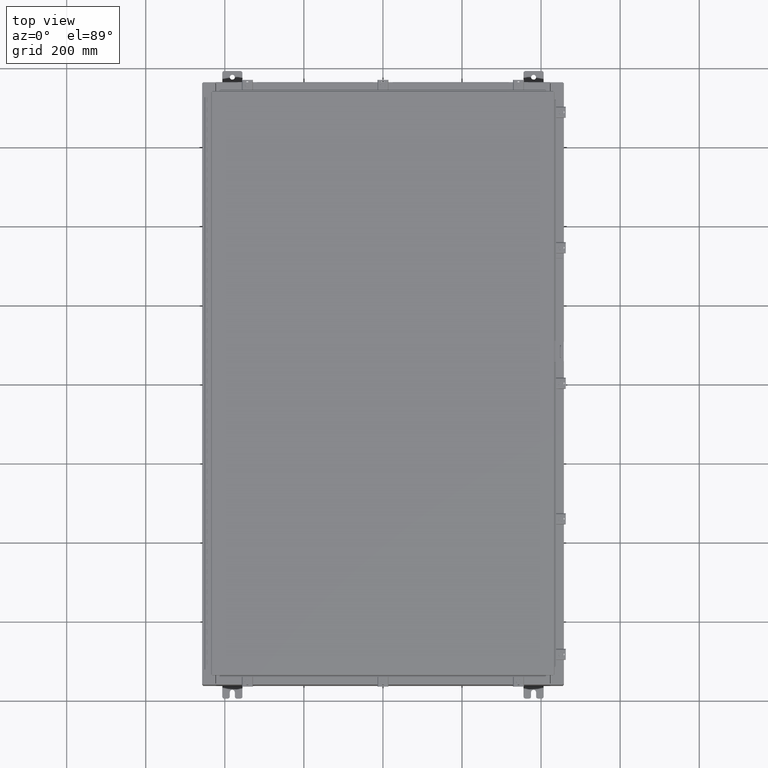
[diagram: clean part render]
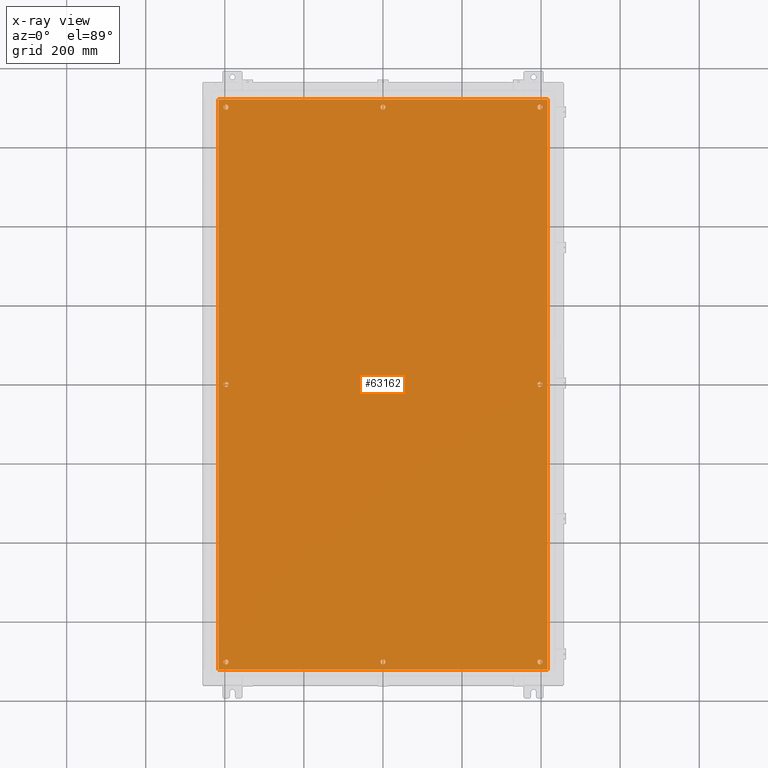
[diagram: x-ray — body ghosted, one internal face saturated and labeled with its STEP entity id]
A machine part, top view, then the same camera in x-ray: the body is ghosted and one INTERNAL B-rep face — a face not visible from any outside direction — is saturated and labeled: STEP entity #63162.
In plain terms, the highlighted planar face has unit normal (0, 0, -1).
Its self-contained STEP definition (entity closure, byte-faithful):
#35 = VERTEX_POINT ( 'NONE', #49221 ) ;
#111 = CIRCLE ( 'NONE', #32058, 0.2500000000000008900 ) ;
#147 = CARTESIAN_POINT ( 'NONE',  ( -15.87500000000001100, 27.62500000000000000, -0.1039999999999999800 ) ) ;
#505 = DIRECTION ( 'NONE',  ( -1.000000000000000000, -0.0000000000000000000, -0.0000000000000000000 ) ) ;
#822 = EDGE_CURVE ( 'NONE', #14076, #9034, #64489, .T. ) ;
#1274 = LINE ( 'NONE', #18261, #26371 ) ;
#1675 = ORIENTED_EDGE ( 'NONE', *, *, #10534, .T. ) ;
#1842 = EDGE_CURVE ( 'NONE', #48294, #40568, #46942, .T. ) ;
#1957 = EDGE_CURVE ( 'NONE', #36405, #15107, #59955, .T. ) ;
#2776 = CARTESIAN_POINT ( 'NONE',  ( -16.38299999999999900, -28.38300000000000600, -0.1040000000000009400 ) ) ;
#2871 = CARTESIAN_POINT ( 'NONE',  ( -15.37500000000000500, -8.298848852119578500E-016, -0.1039999999999999800 ) ) ;
#4050 = AXIS2_PLACEMENT_3D ( 'NONE', #61858, #62147, #61641 ) ;
#4308 = VERTEX_POINT ( 'NONE', #6090 ) ;
#4531 = DIRECTION ( 'NONE',  ( -1.000000000000000000, 0.0000000000000000000, 0.0000000000000000000 ) ) ;
#4767 = CARTESIAN_POINT ( 'NONE',  ( 15.87500000000000700, -27.62500000000000000, -0.1039999999999999800 ) ) ;
#5529 = CARTESIAN_POINT ( 'NONE',  ( -0.2500000000000011700, -27.62500000000000000, -0.1039999999999999800 ) ) ;
#5547 = DIRECTION ( 'NONE',  ( -0.0000000000000000000, -0.0000000000000000000, 1.000000000000000000 ) ) ;
#5575 = EDGE_CURVE ( 'NONE', #27646, #4308, #62225, .T. ) ;
#5855 = EDGE_CURVE ( 'NONE', #59463, #47909, #21763, .T. ) ;
#5938 = ORIENTED_EDGE ( 'NONE', *, *, #1842, .T. ) ;
#6090 = CARTESIAN_POINT ( 'NONE',  ( 0.2499999999999998600, 27.62500000000000000, -0.1039999999999999800 ) ) ;
#6157 = EDGE_LOOP ( 'NONE', ( #45523, #10519 ) ) ;
#6260 = AXIS2_PLACEMENT_3D ( 'NONE', #33582, #46844, #36638 ) ;
#6433 = FACE_BOUND ( 'NONE', #61536, .T. ) ;
#6662 = DIRECTION ( 'NONE',  ( -0.0000000000000000000, -0.0000000000000000000, 1.000000000000000000 ) ) ;
#6666 = CARTESIAN_POINT ( 'NONE',  ( -15.62500000000000900, -27.62500000000000000, -0.1039999999999999800 ) ) ;
#6751 = DIRECTION ( 'NONE',  ( -1.000000000000000000, 0.0000000000000000000, -0.0000000000000000000 ) ) ;
#7074 = DIRECTION ( 'NONE',  ( 0.0000000000000000000, -1.000000000000000000, 0.0000000000000000000 ) ) ;
#7535 = AXIS2_PLACEMENT_3D ( 'NONE', #54150, #24402, #59089 ) ;
#7587 = ORIENTED_EDGE ( 'NONE', *, *, #31138, .T. ) ;
#8145 = AXIS2_PLACEMENT_3D ( 'NONE', #13634, #48515, #18617 ) ;
#8599 = CIRCLE ( 'NONE', #54710, 0.2499999999999998600 ) ;
#8724 = EDGE_CURVE ( 'NONE', #43584, #35350, #42816, .T. ) ;
#8918 = AXIS2_PLACEMENT_3D ( 'NONE', #6666, #56871, #62256 ) ;
#9034 = VERTEX_POINT ( 'NONE', #51717 ) ;
#9943 = ORIENTED_EDGE ( 'NONE', *, *, #40800, .T. ) ;
#10031 = CARTESIAN_POINT ( 'NONE',  ( 15.62500000000000500, 2.997136362123522700E-015, -0.1039999999999999800 ) ) ;
#10519 = ORIENTED_EDGE ( 'NONE', *, *, #5575, .T. ) ;
#10534 = EDGE_CURVE ( 'NONE', #50715, #36953, #57386, .T. ) ;
#10624 = EDGE_CURVE ( 'NONE', #9034, #49176, #1274, .T. ) ;
#10927 = ORIENTED_EDGE ( 'NONE', *, *, #5855, .T. ) ;
#11123 = VERTEX_POINT ( 'NONE', #51784 ) ;
#12966 = AXIS2_PLACEMENT_3D ( 'NONE', #36687, #6662, #41714 ) ;
#13634 = CARTESIAN_POINT ( 'NONE',  ( 0.0000000000000000000, -27.62500000000000000, -0.1039999999999999800 ) ) ;
#14076 = VERTEX_POINT ( 'NONE', #33732 ) ;
#14922 = AXIS2_PLACEMENT_3D ( 'NONE', #15803, #50603, #20775 ) ;
#15094 = DIRECTION ( 'NONE',  ( -1.000000000000000000, 0.0000000000000000000, 0.0000000000000000000 ) ) ;
#15107 = VERTEX_POINT ( 'NONE', #35017 ) ;
#15314 = DIRECTION ( 'NONE',  ( -1.000000000000000000, 0.0000000000000000000, 0.0000000000000000000 ) ) ;
#15419 = ORIENTED_EDGE ( 'NONE', *, *, #32489, .T. ) ;
#15497 = CARTESIAN_POINT ( 'NONE',  ( -15.62500000000001100, 27.62500000000000000, -0.1039999999999999800 ) ) ;
#15803 = CARTESIAN_POINT ( 'NONE',  ( 15.62500000000000900, -27.62500000000000000, -0.1039999999999999800 ) ) ;
#16553 = CARTESIAN_POINT ( 'NONE',  ( 0.0000000000000000000, 0.0000000000000000000, -0.1039999999999999800 ) ) ;
#17496 = CARTESIAN_POINT ( 'NONE',  ( 0.0000000000000000000, 27.62500000000000000, -0.1039999999999999800 ) ) ;
#18103 = FACE_OUTER_BOUND ( 'NONE', #23482, .T. ) ;
#18146 = EDGE_LOOP ( 'NONE', ( #1675, #61317 ) ) ;
#18261 = CARTESIAN_POINT ( 'NONE',  ( 16.50000000000000000, 28.38299999999999600, -0.1040000000000009400 ) ) ;
#18617 = DIRECTION ( 'NONE',  ( -1.000000000000000000, 0.0000000000000000000, 0.0000000000000000000 ) ) ;
#19653 = FACE_BOUND ( 'NONE', #61693, .T. ) ;
#19756 = CARTESIAN_POINT ( 'NONE',  ( 15.87500000000000700, 27.62500000000000000, -0.1039999999999999800 ) ) ;
#20513 = CIRCLE ( 'NONE', #41078, 0.2499999999999987000 ) ;
#20744 = AXIS2_PLACEMENT_3D ( 'NONE', #55270, #5547, #15314 ) ;
#20775 = DIRECTION ( 'NONE',  ( -1.000000000000000000, 0.0000000000000000000, 0.0000000000000000000 ) ) ;
#21763 = CIRCLE ( 'NONE', #45936, 0.2499999999999987000 ) ;
#21905 = ORIENTED_EDGE ( 'NONE', *, *, #822, .F. ) ;
#22380 = ORIENTED_EDGE ( 'NONE', *, *, #23912, .T. ) ;
#22476 = DIRECTION ( 'NONE',  ( -1.000000000000000000, 0.0000000000000000000, 0.0000000000000000000 ) ) ;
#22677 = LINE ( 'NONE', #24694, #60713 ) ;
#22988 = CIRCLE ( 'NONE', #6260, 0.2500000000000008900 ) ;
#23025 = CARTESIAN_POINT ( 'NONE',  ( -15.37500000000000900, -27.62500000000000000, -0.1039999999999999800 ) ) ;
#23425 = CARTESIAN_POINT ( 'NONE',  ( 15.62500000000000500, 2.997136362123522700E-015, -0.1039999999999999800 ) ) ;
#23482 = EDGE_LOOP ( 'NONE', ( #58343, #23974, #41477, #21905 ) ) ;
#23912 = EDGE_CURVE ( 'NONE', #35350, #43584, #22988, .T. ) ;
#23974 = ORIENTED_EDGE ( 'NONE', *, *, #48212, .F. ) ;
#24140 = CIRCLE ( 'NONE', #8145, 0.2500000000000011700 ) ;
#24402 = DIRECTION ( 'NONE',  ( -0.0000000000000000000, -0.0000000000000000000, 1.000000000000000000 ) ) ;
#24694 = CARTESIAN_POINT ( 'NONE',  ( -16.50000000000000000, -28.38300000000000600, -0.1040000000000009400 ) ) ;
#24820 = CARTESIAN_POINT ( 'NONE',  ( -15.87500000000000700, -7.992687152332741600E-016, -0.1039999999999999800 ) ) ;
#26371 = VECTOR ( 'NONE', #505, 39.37007874015748100 ) ;
#27034 = DIRECTION ( 'NONE',  ( -0.0000000000000000000, -0.0000000000000000000, 1.000000000000000000 ) ) ;
#27646 = VERTEX_POINT ( 'NONE', #30185 ) ;
#28447 = CIRCLE ( 'NONE', #56989, 0.2500000000000008900 ) ;
#28569 = DIRECTION ( 'NONE',  ( -1.000000000000000000, 0.0000000000000000000, 0.0000000000000000000 ) ) ;
#28830 = EDGE_CURVE ( 'NONE', #53516, #11123, #24140, .T. ) ;
#29574 = CARTESIAN_POINT ( 'NONE',  ( 15.62500000000000900, 27.62500000000000000, -0.1039999999999999800 ) ) ;
#29831 = DIRECTION ( 'NONE',  ( 1.000000000000000000, -0.0000000000000000000, -0.0000000000000000000 ) ) ;
#30185 = CARTESIAN_POINT ( 'NONE',  ( -0.2499999999999998600, 27.62500000000000000, -0.1039999999999999800 ) ) ;
#30393 = DIRECTION ( 'NONE',  ( -1.000000000000000000, 0.0000000000000000000, 0.0000000000000000000 ) ) ;
#30667 = ORIENTED_EDGE ( 'NONE', *, *, #61171, .T. ) ;
#30670 = EDGE_LOOP ( 'NONE', ( #22380, #62454 ) ) ;
#31138 = EDGE_CURVE ( 'NONE', #15107, #36405, #59421, .T. ) ;
#31520 = FACE_BOUND ( 'NONE', #30670, .T. ) ;
#31668 = EDGE_CURVE ( 'NONE', #35, #57146, #28447, .T. ) ;
#32058 = AXIS2_PLACEMENT_3D ( 'NONE', #23425, #58153, #28569 ) ;
#32489 = EDGE_CURVE ( 'NONE', #11123, #53516, #49257, .T. ) ;
#33152 = EDGE_CURVE ( 'NONE', #4308, #27646, #8599, .T. ) ;
#33475 = ORIENTED_EDGE ( 'NONE', *, *, #42830, .T. ) ;
#33582 = CARTESIAN_POINT ( 'NONE',  ( -15.62500000000001100, 27.62500000000000000, -0.1039999999999999800 ) ) ;
#33604 = AXIS2_PLACEMENT_3D ( 'NONE', #15497, #48525, #39342 ) ;
#33732 = CARTESIAN_POINT ( 'NONE',  ( 16.38299999999999900, -28.38300000000000600, -0.1040000000000009100 ) ) ;
#34183 = CARTESIAN_POINT ( 'NONE',  ( -15.37500000000000900, 27.62500000000000000, -0.1039999999999999800 ) ) ;
#34507 = CARTESIAN_POINT ( 'NONE',  ( 16.38299999999999900, -28.38300000000000600, -0.1040000000000009100 ) ) ;
#34587 = DIRECTION ( 'NONE',  ( -0.0000000000000000000, -0.0000000000000000000, 1.000000000000000000 ) ) ;
#34694 = FACE_BOUND ( 'NONE', #6157, .T. ) ;
#34965 = CARTESIAN_POINT ( 'NONE',  ( -15.87500000000000700, -27.62500000000000000, -0.1039999999999999800 ) ) ;
#35017 = CARTESIAN_POINT ( 'NONE',  ( 15.37500000000000900, -27.62500000000000000, -0.1039999999999999800 ) ) ;
#35350 = VERTEX_POINT ( 'NONE', #34183 ) ;
#35370 = DIRECTION ( 'NONE',  ( 0.0000000000000000000, 1.000000000000000000, 0.0000000000000000000 ) ) ;
#36405 = VERTEX_POINT ( 'NONE', #4767 ) ;
#36638 = DIRECTION ( 'NONE',  ( -1.000000000000000000, 0.0000000000000000000, 0.0000000000000000000 ) ) ;
#36687 = CARTESIAN_POINT ( 'NONE',  ( 15.62500000000000900, 27.62500000000000000, -0.1039999999999999800 ) ) ;
#36774 = DIRECTION ( 'NONE',  ( 0.0000000000000000000, 0.0000000000000000000, -1.000000000000000000 ) ) ;
#36953 = VERTEX_POINT ( 'NONE', #34965 ) ;
#38813 = EDGE_CURVE ( 'NONE', #36953, #50715, #20513, .T. ) ;
#39342 = DIRECTION ( 'NONE',  ( -1.000000000000000000, 0.0000000000000000000, 0.0000000000000000000 ) ) ;
#39373 = ORIENTED_EDGE ( 'NONE', *, *, #28830, .T. ) ;
#39394 = CARTESIAN_POINT ( 'NONE',  ( 15.37500000000000900, 27.62500000000000000, -0.1039999999999999800 ) ) ;
#40568 = VERTEX_POINT ( 'NONE', #24820 ) ;
#40800 = EDGE_CURVE ( 'NONE', #47909, #59463, #63756, .T. ) ;
#41078 = AXIS2_PLACEMENT_3D ( 'NONE', #64080, #34587, #4531 ) ;
#41221 = CARTESIAN_POINT ( 'NONE',  ( 0.0000000000000000000, 27.62500000000000000, -0.1039999999999999800 ) ) ;
#41233 = EDGE_CURVE ( 'NONE', #60992, #14076, #22677, .T. ) ;
#41477 = ORIENTED_EDGE ( 'NONE', *, *, #10624, .F. ) ;
#41714 = DIRECTION ( 'NONE',  ( -1.000000000000000000, 0.0000000000000000000, 0.0000000000000000000 ) ) ;
#42816 = CIRCLE ( 'NONE', #33604, 0.2500000000000008900 ) ;
#42830 = EDGE_CURVE ( 'NONE', #57146, #35, #111, .T. ) ;
#43584 = VERTEX_POINT ( 'NONE', #147 ) ;
#43689 = CIRCLE ( 'NONE', #7535, 0.2500000000000008900 ) ;
#44782 = FACE_BOUND ( 'NONE', #46896, .T. ) ;
#45073 = DIRECTION ( 'NONE',  ( -0.0000000000000000000, -0.0000000000000000000, 1.000000000000000000 ) ) ;
#45523 = ORIENTED_EDGE ( 'NONE', *, *, #33152, .T. ) ;
#45936 = AXIS2_PLACEMENT_3D ( 'NONE', #29574, #61090, #59532 ) ;
#46844 = DIRECTION ( 'NONE',  ( -0.0000000000000000000, -0.0000000000000000000, 1.000000000000000000 ) ) ;
#46896 = EDGE_LOOP ( 'NONE', ( #9943, #10927 ) ) ;
#46942 = CIRCLE ( 'NONE', #4050, 0.2500000000000008900 ) ;
#47167 = VECTOR ( 'NONE', #7074, 39.37007874015748100 ) ;
#47230 = CARTESIAN_POINT ( 'NONE',  ( -16.38299999999999900, 28.38299999999998800, -0.1040000000000009100 ) ) ;
#47909 = VERTEX_POINT ( 'NONE', #19756 ) ;
#48212 = EDGE_CURVE ( 'NONE', #49176, #60992, #63325, .T. ) ;
#48294 = VERTEX_POINT ( 'NONE', #2871 ) ;
#48515 = DIRECTION ( 'NONE',  ( -0.0000000000000000000, -0.0000000000000000000, 1.000000000000000000 ) ) ;
#48525 = DIRECTION ( 'NONE',  ( -0.0000000000000000000, -0.0000000000000000000, 1.000000000000000000 ) ) ;
#49176 = VERTEX_POINT ( 'NONE', #64347 ) ;
#49221 = CARTESIAN_POINT ( 'NONE',  ( 15.37500000000000500, 3.027752532102206500E-015, -0.1039999999999999800 ) ) ;
#49257 = CIRCLE ( 'NONE', #53281, 0.2500000000000011700 ) ;
#49814 = VECTOR ( 'NONE', #35370, 39.37007874015748100 ) ;
#49837 = ORIENTED_EDGE ( 'NONE', *, *, #31668, .T. ) ;
#50603 = DIRECTION ( 'NONE',  ( -0.0000000000000000000, -0.0000000000000000000, 1.000000000000000000 ) ) ;
#50715 = VERTEX_POINT ( 'NONE', #23025 ) ;
#51344 = PLANE ( 'NONE',  #60903 ) ;
#51717 = CARTESIAN_POINT ( 'NONE',  ( 16.38299999999999900, 28.38299999999998800, -0.1040000000000009100 ) ) ;
#51784 = CARTESIAN_POINT ( 'NONE',  ( 0.2500000000000011700, -27.62500000000000000, -0.1039999999999999800 ) ) ;
#51803 = EDGE_LOOP ( 'NONE', ( #55072, #7587 ) ) ;
#52259 = DIRECTION ( 'NONE',  ( -0.0000000000000000000, -0.0000000000000000000, 1.000000000000000000 ) ) ;
#53281 = AXIS2_PLACEMENT_3D ( 'NONE', #56663, #27034, #61650 ) ;
#53289 = CARTESIAN_POINT ( 'NONE',  ( 15.87500000000000700, 2.997136362123522700E-015, -0.1039999999999999800 ) ) ;
#53516 = VERTEX_POINT ( 'NONE', #5529 ) ;
#54150 = CARTESIAN_POINT ( 'NONE',  ( -15.62500000000000500, -8.298848852119578500E-016, -0.1039999999999999800 ) ) ;
#54710 = AXIS2_PLACEMENT_3D ( 'NONE', #17496, #52259, #22476 ) ;
#55072 = ORIENTED_EDGE ( 'NONE', *, *, #1957, .T. ) ;
#55270 = CARTESIAN_POINT ( 'NONE',  ( 15.62500000000000900, -27.62500000000000000, -0.1039999999999999800 ) ) ;
#56663 = CARTESIAN_POINT ( 'NONE',  ( 0.0000000000000000000, -27.62500000000000000, -0.1039999999999999800 ) ) ;
#56871 = DIRECTION ( 'NONE',  ( -0.0000000000000000000, -0.0000000000000000000, 1.000000000000000000 ) ) ;
#56989 = AXIS2_PLACEMENT_3D ( 'NONE', #10031, #45073, #15094 ) ;
#57146 = VERTEX_POINT ( 'NONE', #53289 ) ;
#57386 = CIRCLE ( 'NONE', #8918, 0.2499999999999987000 ) ;
#57744 = FACE_BOUND ( 'NONE', #18146, .T. ) ;
#58153 = DIRECTION ( 'NONE',  ( -0.0000000000000000000, -0.0000000000000000000, 1.000000000000000000 ) ) ;
#58343 = ORIENTED_EDGE ( 'NONE', *, *, #41233, .F. ) ;
#59089 = DIRECTION ( 'NONE',  ( -1.000000000000000000, 0.0000000000000000000, 0.0000000000000000000 ) ) ;
#59094 = DIRECTION ( 'NONE',  ( -0.0000000000000000000, -0.0000000000000000000, 1.000000000000000000 ) ) ;
#59291 = FACE_BOUND ( 'NONE', #51803, .T. ) ;
#59421 = CIRCLE ( 'NONE', #14922, 0.2499999999999987000 ) ;
#59463 = VERTEX_POINT ( 'NONE', #39394 ) ;
#59532 = DIRECTION ( 'NONE',  ( -1.000000000000000000, 0.0000000000000000000, 0.0000000000000000000 ) ) ;
#59955 = CIRCLE ( 'NONE', #20744, 0.2499999999999987000 ) ;
#60713 = VECTOR ( 'NONE', #29831, 39.37007874015748100 ) ;
#60797 = EDGE_LOOP ( 'NONE', ( #33475, #49837 ) ) ;
#60903 = AXIS2_PLACEMENT_3D ( 'NONE', #16553, #36774, #6751 ) ;
#60992 = VERTEX_POINT ( 'NONE', #2776 ) ;
#61090 = DIRECTION ( 'NONE',  ( -0.0000000000000000000, -0.0000000000000000000, 1.000000000000000000 ) ) ;
#61171 = EDGE_CURVE ( 'NONE', #40568, #48294, #43689, .T. ) ;
#61317 = ORIENTED_EDGE ( 'NONE', *, *, #38813, .T. ) ;
#61536 = EDGE_LOOP ( 'NONE', ( #5938, #30667 ) ) ;
#61641 = DIRECTION ( 'NONE',  ( -1.000000000000000000, 0.0000000000000000000, 0.0000000000000000000 ) ) ;
#61650 = DIRECTION ( 'NONE',  ( -1.000000000000000000, 0.0000000000000000000, 0.0000000000000000000 ) ) ;
#61693 = EDGE_LOOP ( 'NONE', ( #15419, #39373 ) ) ;
#61858 = CARTESIAN_POINT ( 'NONE',  ( -15.62500000000000500, -8.298848852119578500E-016, -0.1039999999999999800 ) ) ;
#62147 = DIRECTION ( 'NONE',  ( -0.0000000000000000000, -0.0000000000000000000, 1.000000000000000000 ) ) ;
#62225 = CIRCLE ( 'NONE', #63605, 0.2499999999999998600 ) ;
#62256 = DIRECTION ( 'NONE',  ( -1.000000000000000000, 0.0000000000000000000, 0.0000000000000000000 ) ) ;
#62391 = FACE_BOUND ( 'NONE', #60797, .T. ) ;
#62454 = ORIENTED_EDGE ( 'NONE', *, *, #8724, .T. ) ;
#63162 = ADVANCED_FACE ( 'NONE', ( #19653, #34694, #62391, #6433, #57744, #59291, #44782, #31520, #18103 ), #51344, .T. ) ;
#63325 = LINE ( 'NONE', #47230, #47167 ) ;
#63605 = AXIS2_PLACEMENT_3D ( 'NONE', #41221, #59094, #30393 ) ;
#63756 = CIRCLE ( 'NONE', #12966, 0.2499999999999987000 ) ;
#64080 = CARTESIAN_POINT ( 'NONE',  ( -15.62500000000000900, -27.62500000000000000, -0.1039999999999999800 ) ) ;
#64347 = CARTESIAN_POINT ( 'NONE',  ( -16.38299999999999900, 28.38299999999998800, -0.1040000000000009100 ) ) ;
#64489 = LINE ( 'NONE', #34507, #49814 ) ;